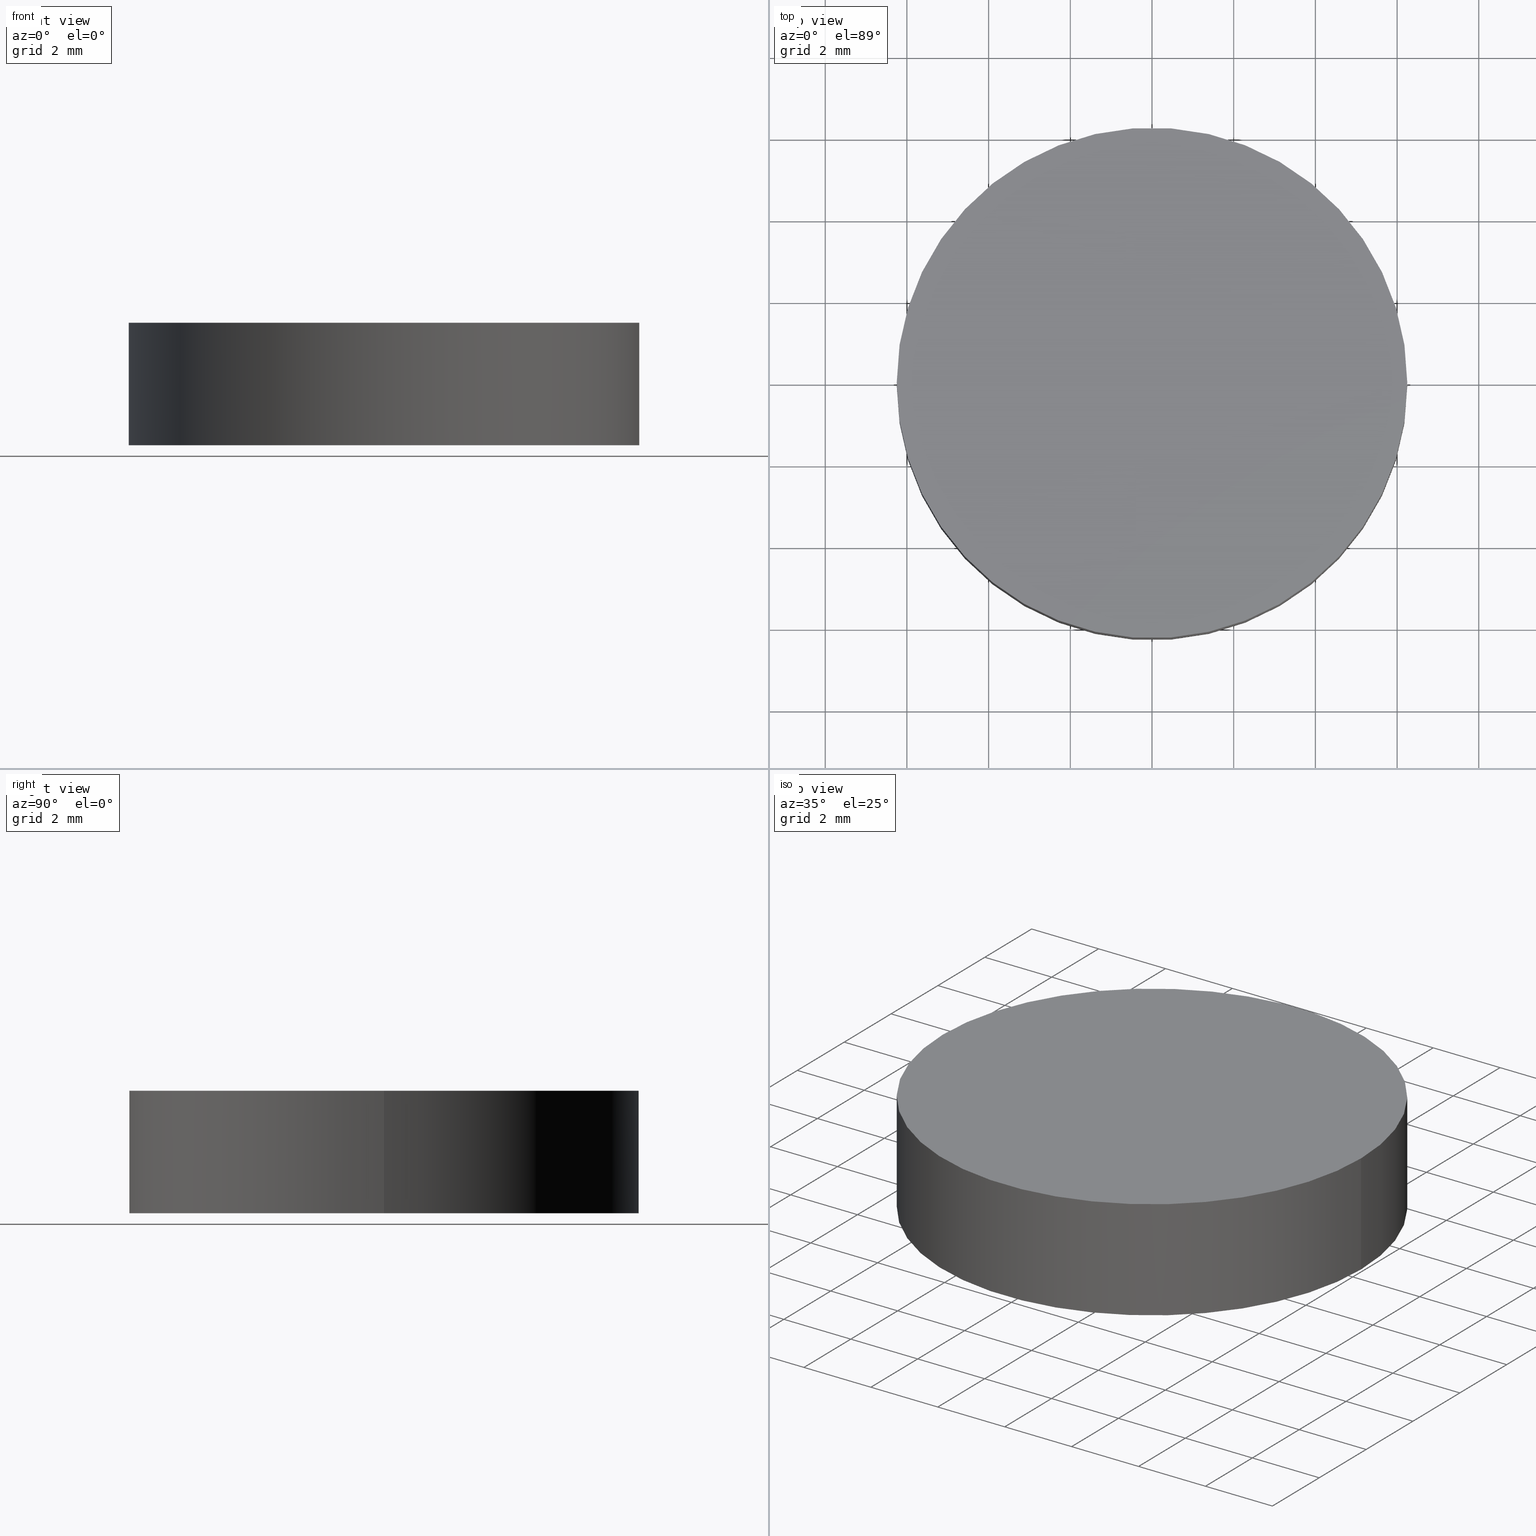
[diagram: canonical four-view strip — front | top / right | iso, engineering-drawing reading convention]
A machine part, canonical four-view strip (front | top / right | iso — engineering-drawing reading convention). The complete STEP part file that produces these views, byte-faithful:
ISO-10303-21;
HEADER;
FILE_DESCRIPTION (( 'STEP AP214' ),
    '1' );
FILE_NAME ('190150.STEP',
    '2019-07-18T06:02:00',
    ( 'user' ),
    ( '΢���й�' ),
    'SwSTEP 2.0',
    'SolidWorks 2016',
    '' );
FILE_SCHEMA (( 'AUTOMOTIVE_DESIGN' ));
ENDSEC;

DATA;
#1 = PRODUCT_DEFINITION ( 'δ֪', '', #10, #2 ) ;
#2 = PRODUCT_DEFINITION_CONTEXT ( 'detailed design', #77, 'design' ) ;
#3 = FACE_OUTER_BOUND ( 'NONE', #38, .T. ) ;
#4 = UNCERTAINTY_MEASURE_WITH_UNIT (LENGTH_MEASURE( 1.000000000000000100E-005 ), #122, 'distance_accuracy_value', 'NONE');
#5 = ORIENTED_EDGE ( 'NONE', *, *, #127, .F. ) ;
#6 = AXIS2_PLACEMENT_3D ( 'NONE', #46, #34, #118 ) ;
#7 = CIRCLE ( 'NONE', #58, 6.250000000000000000 ) ;
#8 = APPLICATION_PROTOCOL_DEFINITION ( 'draft international standard', 'automotive_design', 1998, #77 ) ;
#9 = APPLICATION_CONTEXT ( 'automotive_design' ) ;
#10 = PRODUCT_DEFINITION_FORMATION_WITH_SPECIFIED_SOURCE ( '�κ�', '', #138, .NOT_KNOWN. ) ;
#11 = EDGE_CURVE ( 'NONE', #109, #134, #133, .T. ) ;
#12 =( NAMED_UNIT ( * ) PLANE_ANGLE_UNIT ( ) SI_UNIT ( $, .RADIAN. ) );
#13 = MECHANICAL_DESIGN_GEOMETRIC_PRESENTATION_REPRESENTATION (  '', ( #83 ), #18 ) ;
#14 = ORIENTED_EDGE ( 'NONE', *, *, #74, .F. ) ;
#15 = PRODUCT_CONTEXT ( 'NONE', #9, 'mechanical' ) ;
#16 = APPLICATION_PROTOCOL_DEFINITION ( 'draft international standard', 'automotive_design', 1998, #9 ) ;
#17 = DIRECTION ( 'NONE',  ( 1.000000000000000000, 0.0000000000000000000, -0.0000000000000000000 ) ) ;
#18 =( GEOMETRIC_REPRESENTATION_CONTEXT ( 3 ) GLOBAL_UNCERTAINTY_ASSIGNED_CONTEXT ( ( #119 ) ) GLOBAL_UNIT_ASSIGNED_CONTEXT ( ( #81, #12, #68 ) ) REPRESENTATION_CONTEXT ( 'NONE', 'WORKASPACE' ) );
#19 = DIRECTION ( 'NONE',  ( 1.000000000000000000, 0.0000000000000000000, 0.0000000000000000000 ) ) ;
#20 = CIRCLE ( 'NONE', #139, 6.250000000000000000 ) ;
#21 = LINE ( 'NONE', #105, #110 ) ;
#22 = UNCERTAINTY_MEASURE_WITH_UNIT (LENGTH_MEASURE( 1.000000000000000100E-005 ), #53, 'distance_accuracy_value', 'NONE');
#23 = DIRECTION ( 'NONE',  ( 0.0000000000000000000, 0.0000000000000000000, 1.000000000000000000 ) ) ;
#24 =( NAMED_UNIT ( * ) SI_UNIT ( $, .STERADIAN. ) SOLID_ANGLE_UNIT ( ) );
#25 = DIRECTION ( 'NONE',  ( 0.0000000000000000000, 0.0000000000000000000, 1.000000000000000000 ) ) ;
#26 = ADVANCED_FACE ( 'NONE', ( #99 ), #55, .F. ) ;
#27 = CARTESIAN_POINT ( 'NONE',  ( 0.0000000000000000000, 0.0000000000000000000, 0.0000000000000000000 ) ) ;
#28 = CIRCLE ( 'NONE', #86, 6.250000000000000000 ) ;
#29 = AXIS2_PLACEMENT_3D ( 'NONE', #123, #42, #113 ) ;
#30 = SURFACE_SIDE_STYLE ('',( #135 ) ) ;
#31 = CLOSED_SHELL ( 'NONE', ( #79, #67, #126, #26 ) ) ;
#32 = AXIS2_PLACEMENT_3D ( 'NONE', #100, #23, #89 ) ;
#33 = EDGE_LOOP ( 'NONE', ( #5, #130, #39, #60 ) ) ;
#34 = DIRECTION ( 'NONE',  ( 0.0000000000000000000, 0.0000000000000000000, 1.000000000000000000 ) ) ;
#35 = DIRECTION ( 'NONE',  ( -1.000000000000000000, 0.0000000000000000000, 0.0000000000000000000 ) ) ;
#36 = DIRECTION ( 'NONE',  ( -0.0000000000000000000, -0.0000000000000000000, -1.000000000000000000 ) ) ;
#37 = MANIFOLD_SOLID_BREP ( '͹̨-����1', #31 ) ;
#38 = EDGE_LOOP ( 'NONE', ( #140, #71 ) ) ;
#39 = ORIENTED_EDGE ( 'NONE', *, *, #104, .T. ) ;
#40 = COLOUR_RGB ( '',1.000000000000000000, 1.000000000000000000, 1.000000000000000000 ) ;
#41 =( NAMED_UNIT ( * ) PLANE_ANGLE_UNIT ( ) SI_UNIT ( $, .RADIAN. ) );
#42 = DIRECTION ( 'NONE',  ( 0.0000000000000000000, 0.0000000000000000000, 1.000000000000000000 ) ) ;
#43 = CARTESIAN_POINT ( 'NONE',  ( 0.0000000000000000000, 0.0000000000000000000, 0.0000000000000000000 ) ) ;
#44 = CARTESIAN_POINT ( 'NONE',  ( 6.250000000000000000, 7.654042494670957600E-016, 3.000000000000000000 ) ) ;
#45 = AXIS2_PLACEMENT_3D ( 'NONE', #128, #66, #129 ) ;
#46 = CARTESIAN_POINT ( 'NONE',  ( 0.0000000000000000000, 0.0000000000000000000, 0.0000000000000000000 ) ) ;
#47 = ADVANCED_BREP_SHAPE_REPRESENTATION ( '190150', ( #37, #32 ), #59 ) ;
#48 = VERTEX_POINT ( 'NONE', #44 ) ;
#49 = SHAPE_DEFINITION_REPRESENTATION ( #121, #47 ) ;
#50 = AXIS2_PLACEMENT_3D ( 'NONE', #124, #90, #17 ) ;
#51 = ORIENTED_EDGE ( 'NONE', *, *, #64, .F. ) ;
#52 = SURFACE_STYLE_USAGE ( .BOTH. , #136 ) ;
#53 =( LENGTH_UNIT ( ) NAMED_UNIT ( * ) SI_UNIT ( .MILLI., .METRE. ) );
#54 = CARTESIAN_POINT ( 'NONE',  ( -6.250000000000000000, 0.0000000000000000000, 3.000000000000000000 ) ) ;
#55 = PLANE ( 'NONE',  #6 ) ;
#56 = EDGE_LOOP ( 'NONE', ( #108, #73 ) ) ;
#57 = EDGE_CURVE ( 'NONE', #134, #82, #20, .T. ) ;
#58 = AXIS2_PLACEMENT_3D ( 'NONE', #103, #25, #91 ) ;
#59 =( GEOMETRIC_REPRESENTATION_CONTEXT ( 3 ) GLOBAL_UNCERTAINTY_ASSIGNED_CONTEXT ( ( #22 ) ) GLOBAL_UNIT_ASSIGNED_CONTEXT ( ( #53, #101, #24 ) ) REPRESENTATION_CONTEXT ( 'NONE', 'WORKASPACE' ) );
#60 = ORIENTED_EDGE ( 'NONE', *, *, #11, .F. ) ;
#61 = FACE_OUTER_BOUND ( 'NONE', #33, .T. ) ;
#62 = FILL_AREA_STYLE ('',( #63 ) ) ;
#63 = FILL_AREA_STYLE_COLOUR ( '', #120 ) ;
#64 = EDGE_CURVE ( 'NONE', #48, #82, #21, .T. ) ;
#65 = PLANE ( 'NONE',  #50 ) ;
#66 = DIRECTION ( 'NONE',  ( -0.0000000000000000000, -0.0000000000000000000, -1.000000000000000000 ) ) ;
#67 = ADVANCED_FACE ( 'NONE', ( #107 ), #80, .T. ) ;
#68 =( NAMED_UNIT ( * ) SI_UNIT ( $, .STERADIAN. ) SOLID_ANGLE_UNIT ( ) );
#69 = AXIS2_PLACEMENT_3D ( 'NONE', #116, #125, #35 ) ;
#70 = DIRECTION ( 'NONE',  ( -0.0000000000000000000, -0.0000000000000000000, -1.000000000000000000 ) ) ;
#71 = ORIENTED_EDGE ( 'NONE', *, *, #127, .T. ) ;
#72 = VECTOR ( 'NONE', #70, 1000.000000000000000 ) ;
#73 = ORIENTED_EDGE ( 'NONE', *, *, #104, .F. ) ;
#74 = EDGE_CURVE ( 'NONE', #109, #48, #7, .T. ) ;
#75 =( GEOMETRIC_REPRESENTATION_CONTEXT ( 3 ) GLOBAL_UNCERTAINTY_ASSIGNED_CONTEXT ( ( #4 ) ) GLOBAL_UNIT_ASSIGNED_CONTEXT ( ( #122, #41, #112 ) ) REPRESENTATION_CONTEXT ( 'NONE', 'WORKASPACE' ) );
#76 = PRESENTATION_STYLE_ASSIGNMENT (( #93 ) ) ;
#77 = APPLICATION_CONTEXT ( 'automotive_design' ) ;
#78 = CARTESIAN_POINT ( 'NONE',  ( 6.250000000000000000, 7.654042494670957600E-016, 0.0000000000000000000 ) ) ;
#79 = ADVANCED_FACE ( 'NONE', ( #61 ), #85, .T. ) ;
#80 = CYLINDRICAL_SURFACE ( 'NONE', #45, 6.250000000000000000 ) ;
#81 =( LENGTH_UNIT ( ) NAMED_UNIT ( * ) SI_UNIT ( .MILLI., .METRE. ) );
#82 = VERTEX_POINT ( 'NONE', #78 ) ;
#83 = STYLED_ITEM ( 'NONE', ( #76 ), #37 ) ;
#84 = PRESENTATION_STYLE_ASSIGNMENT (( #52 ) ) ;
#85 = CYLINDRICAL_SURFACE ( 'NONE', #69, 6.250000000000000000 ) ;
#86 = AXIS2_PLACEMENT_3D ( 'NONE', #43, #114, #102 ) ;
#87 = MECHANICAL_DESIGN_GEOMETRIC_PRESENTATION_REPRESENTATION (  '', ( #98 ), #75 ) ;
#88 = EDGE_LOOP ( 'NONE', ( #51, #14, #97, #96 ) ) ;
#89 = DIRECTION ( 'NONE',  ( 1.000000000000000000, 0.0000000000000000000, 0.0000000000000000000 ) ) ;
#90 = DIRECTION ( 'NONE',  ( 0.0000000000000000000, 0.0000000000000000000, 1.000000000000000000 ) ) ;
#91 = DIRECTION ( 'NONE',  ( 1.000000000000000000, 0.0000000000000000000, 0.0000000000000000000 ) ) ;
#92 = DIRECTION ( 'NONE',  ( 0.0000000000000000000, 0.0000000000000000000, 1.000000000000000000 ) ) ;
#93 = SURFACE_STYLE_USAGE ( .BOTH. , #30 ) ;
#94 = PRESENTATION_LAYER_ASSIGNMENT (  '', '', ( #98 ) ) ;
#95 = CARTESIAN_POINT ( 'NONE',  ( -6.250000000000000000, 0.0000000000000000000, 3.000000000000000000 ) ) ;
#96 = ORIENTED_EDGE ( 'NONE', *, *, #57, .T. ) ;
#97 = ORIENTED_EDGE ( 'NONE', *, *, #11, .T. ) ;
#98 = STYLED_ITEM ( 'NONE', ( #84 ), #47 ) ;
#99 = FACE_OUTER_BOUND ( 'NONE', #56, .T. ) ;
#100 = CARTESIAN_POINT ( 'NONE',  ( 0.0000000000000000000, 0.0000000000000000000, 0.0000000000000000000 ) ) ;
#101 =( NAMED_UNIT ( * ) PLANE_ANGLE_UNIT ( ) SI_UNIT ( $, .RADIAN. ) );
#102 = DIRECTION ( 'NONE',  ( 1.000000000000000000, 0.0000000000000000000, 0.0000000000000000000 ) ) ;
#103 = CARTESIAN_POINT ( 'NONE',  ( 0.0000000000000000000, 0.0000000000000000000, 3.000000000000000000 ) ) ;
#104 = EDGE_CURVE ( 'NONE', #82, #134, #28, .T. ) ;
#105 = CARTESIAN_POINT ( 'NONE',  ( 6.250000000000000000, 7.654042494670957600E-016, 3.000000000000000000 ) ) ;
#106 = FILL_AREA_STYLE ('',( #111 ) ) ;
#107 = FACE_OUTER_BOUND ( 'NONE', #88, .T. ) ;
#108 = ORIENTED_EDGE ( 'NONE', *, *, #57, .F. ) ;
#109 = VERTEX_POINT ( 'NONE', #54 ) ;
#110 = VECTOR ( 'NONE', #36, 1000.000000000000000 ) ;
#111 = FILL_AREA_STYLE_COLOUR ( '', #40 ) ;
#112 =( NAMED_UNIT ( * ) SI_UNIT ( $, .STERADIAN. ) SOLID_ANGLE_UNIT ( ) );
#113 = DIRECTION ( 'NONE',  ( 1.000000000000000000, 0.0000000000000000000, 0.0000000000000000000 ) ) ;
#114 = DIRECTION ( 'NONE',  ( 0.0000000000000000000, 0.0000000000000000000, 1.000000000000000000 ) ) ;
#115 = SURFACE_STYLE_FILL_AREA ( #62 ) ;
#116 = CARTESIAN_POINT ( 'NONE',  ( 0.0000000000000000000, 0.0000000000000000000, 3.000000000000000000 ) ) ;
#117 = CIRCLE ( 'NONE', #29, 6.250000000000000000 ) ;
#118 = DIRECTION ( 'NONE',  ( 1.000000000000000000, 0.0000000000000000000, -0.0000000000000000000 ) ) ;
#119 = UNCERTAINTY_MEASURE_WITH_UNIT (LENGTH_MEASURE( 1.000000000000000100E-005 ), #81, 'distance_accuracy_value', 'NONE');
#120 = COLOUR_RGB ( '',1.000000000000000000, 1.000000000000000000, 1.000000000000000000 ) ;
#121 = PRODUCT_DEFINITION_SHAPE ( 'NONE', 'NONE',  #1 ) ;
#122 =( LENGTH_UNIT ( ) NAMED_UNIT ( * ) SI_UNIT ( .MILLI., .METRE. ) );
#123 = CARTESIAN_POINT ( 'NONE',  ( 0.0000000000000000000, 0.0000000000000000000, 3.000000000000000000 ) ) ;
#124 = CARTESIAN_POINT ( 'NONE',  ( 0.0000000000000000000, 0.0000000000000000000, 3.000000000000000000 ) ) ;
#125 = DIRECTION ( 'NONE',  ( -0.0000000000000000000, -0.0000000000000000000, -1.000000000000000000 ) ) ;
#126 = ADVANCED_FACE ( 'NONE', ( #3 ), #65, .T. ) ;
#127 = EDGE_CURVE ( 'NONE', #48, #109, #117, .T. ) ;
#128 = CARTESIAN_POINT ( 'NONE',  ( 0.0000000000000000000, 0.0000000000000000000, 3.000000000000000000 ) ) ;
#129 = DIRECTION ( 'NONE',  ( -1.000000000000000000, 0.0000000000000000000, 0.0000000000000000000 ) ) ;
#130 = ORIENTED_EDGE ( 'NONE', *, *, #64, .T. ) ;
#131 = PRESENTATION_LAYER_ASSIGNMENT (  '', '', ( #83 ) ) ;
#132 = PRODUCT_RELATED_PRODUCT_CATEGORY ( 'part', '', ( #138 ) ) ;
#133 = LINE ( 'NONE', #95, #72 ) ;
#134 = VERTEX_POINT ( 'NONE', #137 ) ;
#135 = SURFACE_STYLE_FILL_AREA ( #106 ) ;
#136 = SURFACE_SIDE_STYLE ('',( #115 ) ) ;
#137 = CARTESIAN_POINT ( 'NONE',  ( -6.250000000000000000, 0.0000000000000000000, 0.0000000000000000000 ) ) ;
#138 = PRODUCT ( '190150', '190150', '', ( #15 ) ) ;
#139 = AXIS2_PLACEMENT_3D ( 'NONE', #27, #92, #19 ) ;
#140 = ORIENTED_EDGE ( 'NONE', *, *, #74, .T. ) ;
ENDSEC;
END-ISO-10303-21;
